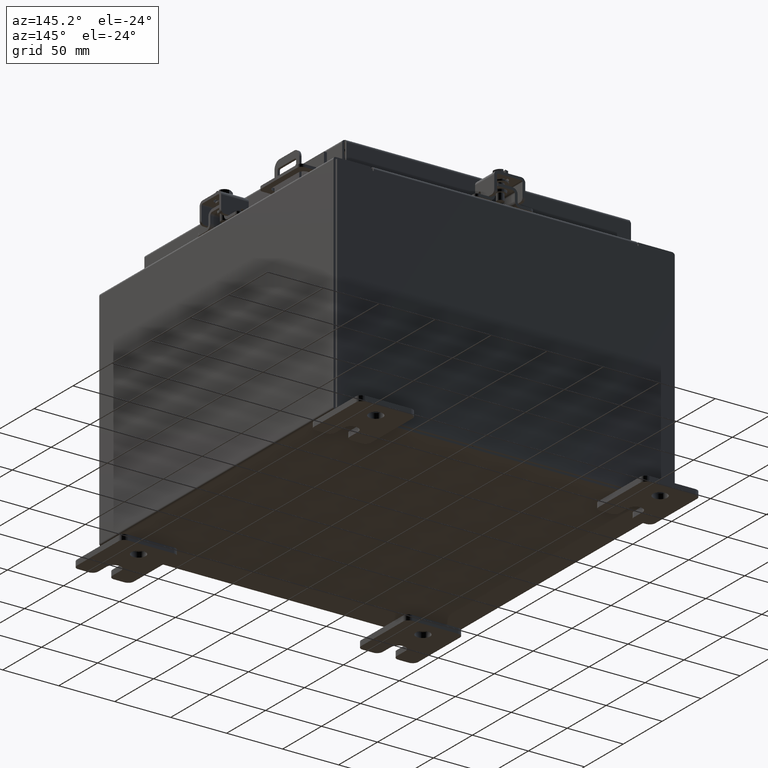
[diagram: clean part render]
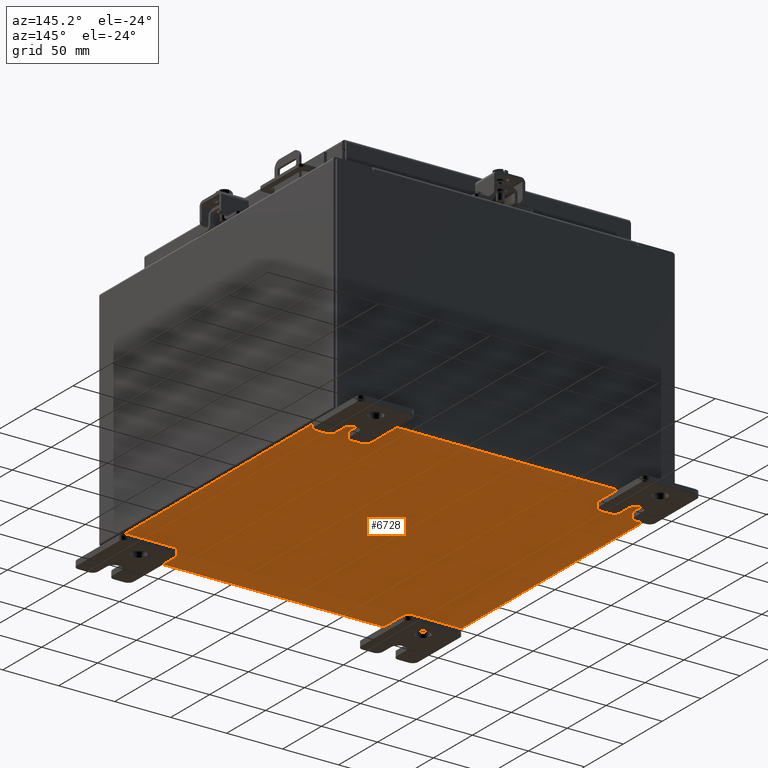
[diagram: same view with one face highlighted and labeled with its STEP entity id]
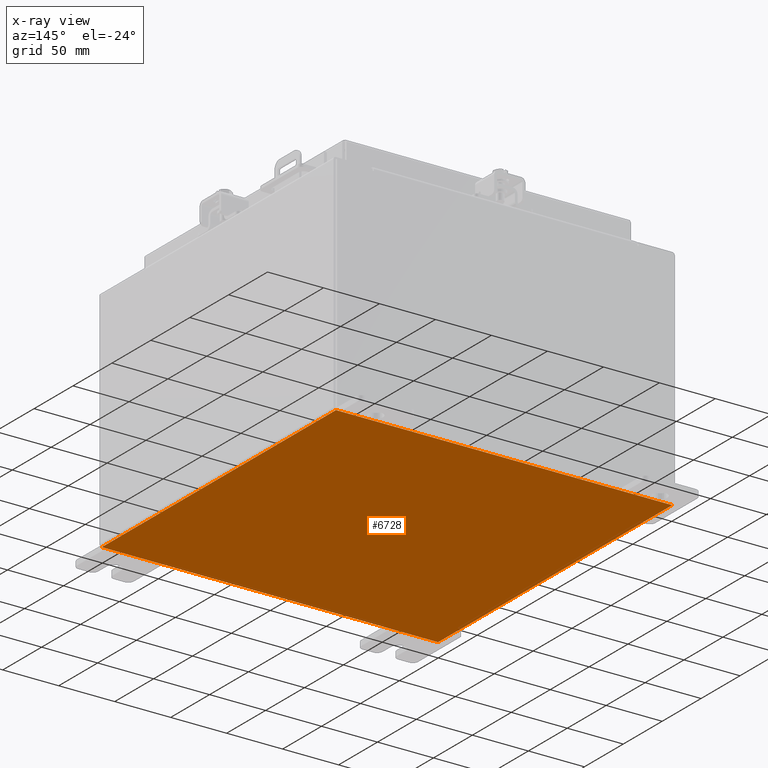
[diagram: x-ray of the same camera — body ghosted, the highlighted face saturated]
A machine part, auxiliary view. The second image highlights one B-rep face of the part: STEP entity #6728.
The next image is the same camera in x-ray: the body ghosted, the highlighted face saturated — about 0% of this face is hidden behind the body in this view.
In plain terms, the highlighted planar face has unit normal (0, 0, -1).
Its self-contained STEP definition (entity closure, byte-faithful):
#2242 = CARTESIAN_POINT ( 'NONE',  ( -5.912299999999999200, -5.925300000000001800, -0.07469999999999996100 ) ) ;
#2593 = VERTEX_POINT ( 'NONE', #17667 ) ;
#2779 = PLANE ( 'NONE',  #8110 ) ;
#3086 = LINE ( 'NONE', #17431, #12690 ) ;
#3812 = CARTESIAN_POINT ( 'NONE',  ( -5.999999999999999100, 5.925299999999999100, -0.07469999999999998900 ) ) ;
#4355 = ORIENTED_EDGE ( 'NONE', *, *, #5390, .F. ) ;
#4590 = DIRECTION ( 'NONE',  ( -1.000000000000000000, 0.0000000000000000000, -0.0000000000000000000 ) ) ;
#4708 = CARTESIAN_POINT ( 'NONE',  ( -5.912299999999999200, 5.925299999999999100, -0.07469999999999998900 ) ) ;
#4746 = VECTOR ( 'NONE', #16465, 39.37007874015748100 ) ;
#5313 = CARTESIAN_POINT ( 'NONE',  ( -5.912299999999999200, -5.925299999999999100, -0.07469999999999996100 ) ) ;
#5390 = EDGE_CURVE ( 'NONE', #2593, #15408, #13209, .T. ) ;
#6061 = LINE ( 'NONE', #2242, #14510 ) ;
#6342 = CARTESIAN_POINT ( 'NONE',  ( 0.0000000000000000000, 0.0000000000000000000, -0.07469999999999998900 ) ) ;
#6728 = ADVANCED_FACE ( 'NONE', ( #16573 ), #2779, .T. ) ;
#8110 = AXIS2_PLACEMENT_3D ( 'NONE', #6342, #15410, #4590 ) ;
#8820 = EDGE_CURVE ( 'NONE', #20422, #15408, #6061, .T. ) ;
#11294 = DIRECTION ( 'NONE',  ( -0.0000000000000000000, -1.000000000000000000, -0.0000000000000000000 ) ) ;
#11544 = VECTOR ( 'NONE', #11294, 39.37007874015748100 ) ;
#12512 = ORIENTED_EDGE ( 'NONE', *, *, #17158, .F. ) ;
#12690 = VECTOR ( 'NONE', #22809, 39.37007874015748100 ) ;
#13072 = CARTESIAN_POINT ( 'NONE',  ( 5.912300000000001000, 5.925299999999999100, -0.07469999999999996100 ) ) ;
#13209 = LINE ( 'NONE', #3812, #4746 ) ;
#13856 = ORIENTED_EDGE ( 'NONE', *, *, #8820, .T. ) ;
#14510 = VECTOR ( 'NONE', #22092, 39.37007874015748100 ) ;
#14686 = EDGE_CURVE ( 'NONE', #2593, #17204, #21738, .T. ) ;
#15408 = VERTEX_POINT ( 'NONE', #4708 ) ;
#15410 = DIRECTION ( 'NONE',  ( 0.0000000000000000000, 0.0000000000000000000, -1.000000000000000000 ) ) ;
#16465 = DIRECTION ( 'NONE',  ( -1.000000000000000000, -0.0000000000000000000, -0.0000000000000000000 ) ) ;
#16573 = FACE_OUTER_BOUND ( 'NONE', #17819, .T. ) ;
#17158 = EDGE_CURVE ( 'NONE', #20422, #17204, #3086, .T. ) ;
#17204 = VERTEX_POINT ( 'NONE', #19406 ) ;
#17431 = CARTESIAN_POINT ( 'NONE',  ( -5.999999999999999100, -5.925300000000001800, -0.07469999999999998900 ) ) ;
#17667 = CARTESIAN_POINT ( 'NONE',  ( 5.912300000000001000, 5.925299999999998200, -0.07469999999999996100 ) ) ;
#17819 = EDGE_LOOP ( 'NONE', ( #12512, #13856, #4355, #22609 ) ) ;
#19406 = CARTESIAN_POINT ( 'NONE',  ( 5.912299999999996600, -5.925300000000001800, -0.07469999999999998900 ) ) ;
#20422 = VERTEX_POINT ( 'NONE', #5313 ) ;
#21738 = LINE ( 'NONE', #13072, #11544 ) ;
#22092 = DIRECTION ( 'NONE',  ( -0.0000000000000000000, 1.000000000000000000, -0.0000000000000000000 ) ) ;
#22609 = ORIENTED_EDGE ( 'NONE', *, *, #14686, .T. ) ;
#22809 = DIRECTION ( 'NONE',  ( 1.000000000000000000, 0.0000000000000000000, 0.0000000000000000000 ) ) ;